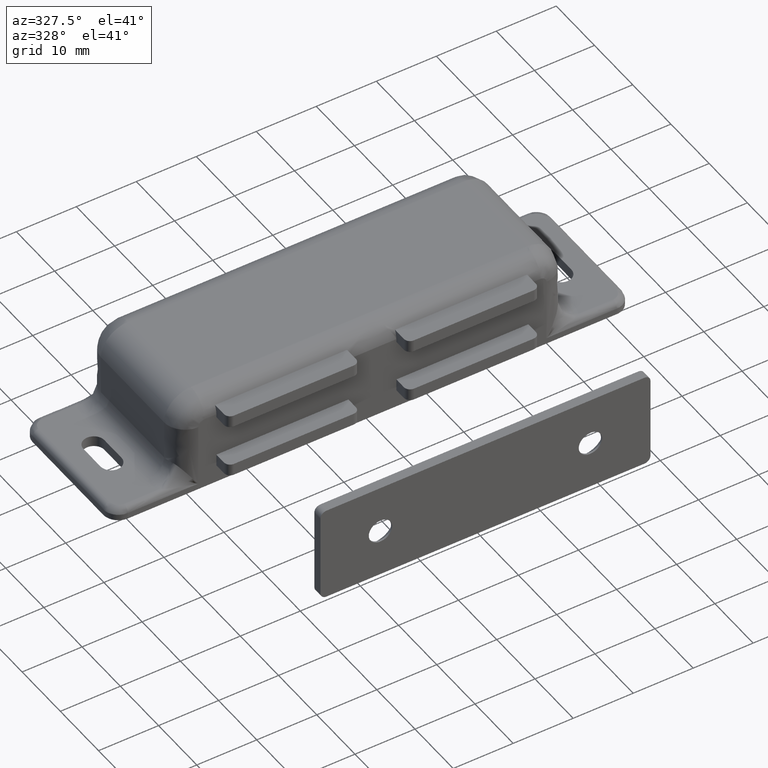
[diagram: clean part render]
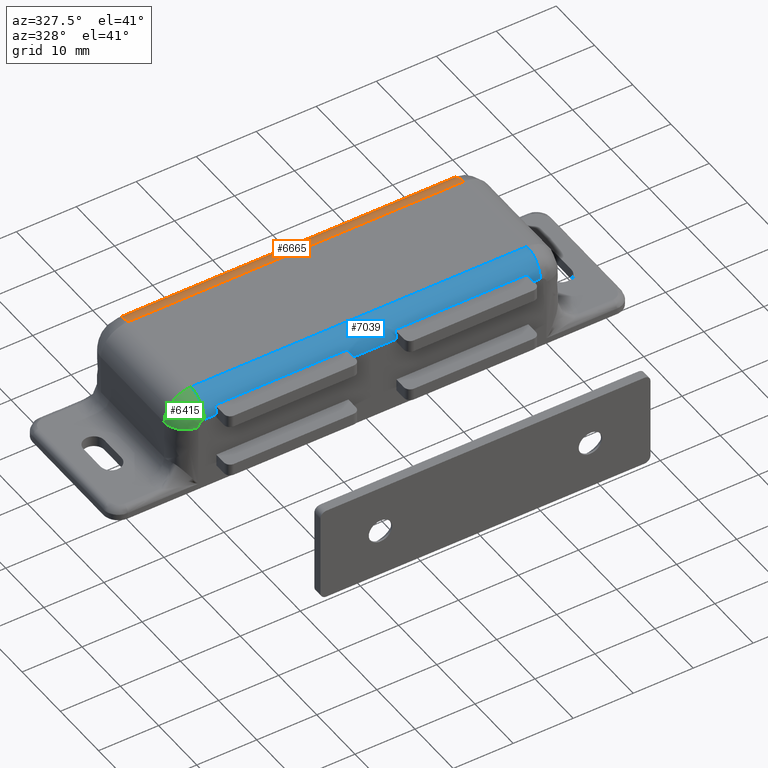
[diagram: same view with three faces highlighted in distinct colors, each labeled with its STEP entity id]
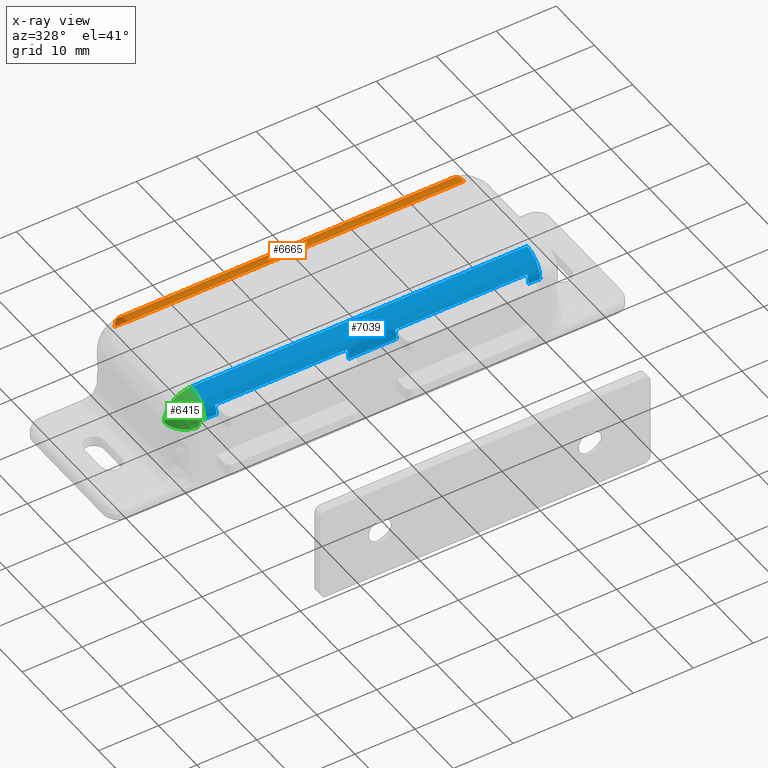
[diagram: x-ray of the same camera — body ghosted, the three highlighted faces saturated]
A machine part, auxiliary view with three faces highlighted in distinct colors.
The next image is the same camera in x-ray (body ghosted, the three faces saturated) — at least one of them is partly hidden behind the body in this view.
Their STEP definitions:

[orange] entity #6665 — the highlighted face is a freeform B-spline surface patch.
#6228=CARTESIAN_POINT('',(-28.000003000000000,11.750000000000000,12.500000000000000));
#6229=VERTEX_POINT('',#6228);
#6230=CARTESIAN_POINT('',(-28.000003000000000,8.250000000000110,16.0));
#6231=VERTEX_POINT('',#6230);
#6232=CARTESIAN_POINT('',(-28.000003000000000,11.750000000000000,12.500000000000000));
#6233=CARTESIAN_POINT('',(-28.000002999999996,11.750000000000110,16.0));
#6234=CARTESIAN_POINT('',(-28.000003000000000,8.250000000000110,16.0));
#6242=(BOUNDED_CURVE()B_SPLINE_CURVE(2,(#6232,#6233,#6234),.UNSPECIFIED.,.F.,.U.)CURVE()GEOMETRIC_REPRESENTATION_ITEM()QUASI_UNIFORM_CURVE()RATIONAL_B_SPLINE_CURVE((1.0,0.707106781186547,1.0))REPRESENTATION_ITEM(''));
#6243=EDGE_CURVE('',#6229,#6231,#6242,.T.);
#6528=CARTESIAN_POINT('',(28.0,8.250000000000110,16.0));
#6529=VERTEX_POINT('',#6528);
#6592=CARTESIAN_POINT('',(28.0,11.750000000000000,12.500000000000000));
#6593=VERTEX_POINT('',#6592);
#6607=CARTESIAN_POINT('',(28.0,8.250000000000110,16.0));
#6608=CARTESIAN_POINT('',(28.000000000000004,11.750000000000110,16.0));
#6609=CARTESIAN_POINT('',(28.0,11.750000000000000,12.500000000000000));
#6617=(BOUNDED_CURVE()B_SPLINE_CURVE(2,(#6607,#6608,#6609),.UNSPECIFIED.,.F.,.U.)CURVE()GEOMETRIC_REPRESENTATION_ITEM()QUASI_UNIFORM_CURVE()RATIONAL_B_SPLINE_CURVE((1.0,0.707106781186547,1.0))REPRESENTATION_ITEM(''));
#6618=EDGE_CURVE('',#6529,#6593,#6617,.T.);
#6637=CARTESIAN_POINT('',(29.400000075000008,11.749866730724710,12.469457125755691));
#6638=CARTESIAN_POINT('',(-29.435003076875009,11.749866730724710,12.469457125755691));
#6639=CARTESIAN_POINT('',(29.400000075000008,11.782619953378520,16.222604697041128));
#6640=CARTESIAN_POINT('',(-29.435003076875002,11.782619953378520,16.222604697041128));
#6641=CARTESIAN_POINT('',(29.400000075000008,8.036330111628113,15.993471794476530));
#6642=CARTESIAN_POINT('',(-29.435003076875009,8.036330111628113,15.993471794476530));
#6650=(BOUNDED_SURFACE()B_SPLINE_SURFACE(1,2,((#6637,#6639,#6641),(#6638,#6640,#6642)),.UNSPECIFIED.,.F.,.F.,.U.)B_SPLINE_SURFACE_WITH_KNOTS((2,2),(3,3),(0.0,58.835003151875007),(0.0,6.087373249453059),.UNSPECIFIED.)GEOMETRIC_REPRESENTATION_ITEM()RATIONAL_B_SPLINE_SURFACE(((1.0,0.681998360062499,1.0),(1.0,0.681998360062499,1.0)))REPRESENTATION_ITEM('')SURFACE());
#6651=CARTESIAN_POINT('',(-28.000003000000000,11.750000000000000,12.500000000000000));
#6652=CARTESIAN_POINT('',(28.0,11.750000000000000,12.500000000000000));
#6653=QUASI_UNIFORM_CURVE('',1,(#6651,#6652),.UNSPECIFIED.,.F.,.U.);
#6654=EDGE_CURVE('',#6229,#6593,#6653,.T.);
#6655=ORIENTED_EDGE('',*,*,#6654,.F.);
#6656=ORIENTED_EDGE('',*,*,#6243,.T.);
#6657=CARTESIAN_POINT('',(28.0,8.250000000000110,16.0));
#6658=CARTESIAN_POINT('',(-28.000003000000000,8.250000000000110,16.0));
#6659=QUASI_UNIFORM_CURVE('',1,(#6657,#6658),.UNSPECIFIED.,.F.,.U.);
#6660=EDGE_CURVE('',#6529,#6231,#6659,.T.);
#6661=ORIENTED_EDGE('',*,*,#6660,.F.);
#6662=ORIENTED_EDGE('',*,*,#6618,.T.);
#6663=EDGE_LOOP('',(#6655,#6656,#6661,#6662));
#6664=FACE_OUTER_BOUND('',#6663,.T.);
#6665=ADVANCED_FACE('',(#6664),#6650,.T.);

[blue] entity #7039 — the highlighted face is a freeform B-spline surface patch.
#1649=CARTESIAN_POINT('',(4.0,-11.412277660168240,14.0));
#1650=VERTEX_POINT('',#1649);
#1651=CARTESIAN_POINT('',(4.0,-11.750000000000000,12.500000000000000));
#1652=VERTEX_POINT('',#1651);
#1653=CARTESIAN_POINT('',(4.0,-11.412277660168250,14.0));
#1654=CARTESIAN_POINT('',(4.000000000000000,-11.749999999999874,13.288018792940452));
#1655=CARTESIAN_POINT('',(4.0,-11.750000000000000,12.500000000000000));
#1663=(BOUNDED_CURVE()B_SPLINE_CURVE(2,(#1653,#1654,#1655),.UNSPECIFIED.,.F.,.U.)CURVE()GEOMETRIC_REPRESENTATION_ITEM()QUASI_UNIFORM_CURVE()RATIONAL_B_SPLINE_CURVE((1.0,0.975578777676424,1.0))REPRESENTATION_ITEM(''));
#1664=EDGE_CURVE('',#1650,#1652,#1663,.T.);
#1715=CARTESIAN_POINT('',(26.0,-11.750000000000000,12.500000000000000));
#1716=VERTEX_POINT('',#1715);
#1717=CARTESIAN_POINT('',(26.0,-11.412277660168280,14.0));
#1718=VERTEX_POINT('',#1717);
#1719=CARTESIAN_POINT('',(26.0,-11.750000000000000,12.500000000000000));
#1720=CARTESIAN_POINT('',(26.000000000000004,-11.749999999999869,13.288018792940438));
#1721=CARTESIAN_POINT('',(26.0,-11.412277660168259,13.999999999999989));
#1729=(BOUNDED_CURVE()B_SPLINE_CURVE(2,(#1719,#1720,#1721),.UNSPECIFIED.,.F.,.U.)CURVE()GEOMETRIC_REPRESENTATION_ITEM()QUASI_UNIFORM_CURVE()RATIONAL_B_SPLINE_CURVE((1.0,0.975578777676425,1.0))REPRESENTATION_ITEM(''));
#1730=EDGE_CURVE('',#1716,#1718,#1729,.T.);
#1801=CARTESIAN_POINT('',(26.0,-11.412277660168280,14.0));
#1802=CARTESIAN_POINT('',(4.0,-11.412277660168240,14.0));
#1803=QUASI_UNIFORM_CURVE('',1,(#1801,#1802),.UNSPECIFIED.,.F.,.U.);
#1804=EDGE_CURVE('',#1718,#1650,#1803,.T.);
#1859=CARTESIAN_POINT('',(-4.0,-11.412277660168240,14.0));
#1860=VERTEX_POINT('',#1859);
#1887=CARTESIAN_POINT('',(-4.0,-11.750000000000000,12.500000000000000));
#1888=VERTEX_POINT('',#1887);
#1894=CARTESIAN_POINT('',(-4.0,-11.412277660168250,14.0));
#1895=CARTESIAN_POINT('',(-4.000000000000000,-11.749999999999874,13.288018792940452));
#1896=CARTESIAN_POINT('',(-4.0,-11.750000000000000,12.500000000000000));
#1904=(BOUNDED_CURVE()B_SPLINE_CURVE(2,(#1894,#1895,#1896),.UNSPECIFIED.,.F.,.U.)CURVE()GEOMETRIC_REPRESENTATION_ITEM()QUASI_UNIFORM_CURVE()RATIONAL_B_SPLINE_CURVE((1.0,0.975578777676424,1.0))REPRESENTATION_ITEM(''));
#1905=EDGE_CURVE('',#1860,#1888,#1904,.T.);
#1915=CARTESIAN_POINT('',(-26.000003000000000,-11.750000000000000,12.500000000000000));
#1916=VERTEX_POINT('',#1915);
#1945=CARTESIAN_POINT('',(-26.000003000000000,-11.412277660168280,14.0));
#1946=VERTEX_POINT('',#1945);
#1952=CARTESIAN_POINT('',(-26.000003000000000,-11.750000000000000,12.500000000000000));
#1953=CARTESIAN_POINT('',(-26.000003000000000,-11.749999999999869,13.288018792940438));
#1954=CARTESIAN_POINT('',(-26.000003000000000,-11.412277660168259,13.999999999999989));
#1962=(BOUNDED_CURVE()B_SPLINE_CURVE(2,(#1952,#1953,#1954),.UNSPECIFIED.,.F.,.U.)CURVE()GEOMETRIC_REPRESENTATION_ITEM()QUASI_UNIFORM_CURVE()RATIONAL_B_SPLINE_CURVE((1.0,0.975578777676425,1.0))REPRESENTATION_ITEM(''));
#1963=EDGE_CURVE('',#1916,#1946,#1962,.T.);
#1980=CARTESIAN_POINT('',(-26.000003000000000,-11.412277660168280,14.0));
#1981=CARTESIAN_POINT('',(-4.0,-11.412277660168240,14.0));
#1982=QUASI_UNIFORM_CURVE('',1,(#1980,#1981),.UNSPECIFIED.,.F.,.U.);
#1983=EDGE_CURVE('',#1946,#1860,#1982,.T.);
#6307=CARTESIAN_POINT('',(-28.000003000000000,-8.249999999999870,16.0));
#6308=VERTEX_POINT('',#6307);
#6371=CARTESIAN_POINT('',(-28.000003000000000,-11.750000000000000,12.500000000000000));
#6372=VERTEX_POINT('',#6371);
#6386=CARTESIAN_POINT('',(-28.000003000000000,-8.249999999999870,16.0));
#6387=CARTESIAN_POINT('',(-28.000002999999996,-11.749999999999872,16.0));
#6388=CARTESIAN_POINT('',(-28.000003000000000,-11.750000000000000,12.500000000000000));
#6396=(BOUNDED_CURVE()B_SPLINE_CURVE(2,(#6386,#6387,#6388),.UNSPECIFIED.,.F.,.U.)CURVE()GEOMETRIC_REPRESENTATION_ITEM()QUASI_UNIFORM_CURVE()RATIONAL_B_SPLINE_CURVE((1.0,0.707106781186547,1.0))REPRESENTATION_ITEM(''));
#6397=EDGE_CURVE('',#6308,#6372,#6396,.T.);
#6449=CARTESIAN_POINT('',(28.0,-11.750000000000000,12.500000000000000));
#6450=VERTEX_POINT('',#6449);
#6451=CARTESIAN_POINT('',(28.0,-8.249999999999870,16.0));
#6452=VERTEX_POINT('',#6451);
#6453=CARTESIAN_POINT('',(28.0,-11.750000000000000,12.500000000000000));
#6454=CARTESIAN_POINT('',(28.000000000000004,-11.749999999999890,16.0));
#6455=CARTESIAN_POINT('',(28.0,-8.249999999999890,16.0));
#6463=(BOUNDED_CURVE()B_SPLINE_CURVE(2,(#6453,#6454,#6455),.UNSPECIFIED.,.F.,.U.)CURVE()GEOMETRIC_REPRESENTATION_ITEM()QUASI_UNIFORM_CURVE()RATIONAL_B_SPLINE_CURVE((1.0,0.707106781186547,1.0))REPRESENTATION_ITEM(''));
#6464=EDGE_CURVE('',#6450,#6452,#6463,.T.);
#6805=CARTESIAN_POINT('',(-28.000003000000000,-8.249999999999870,16.0));
#6806=CARTESIAN_POINT('',(28.0,-8.249999999999870,16.0));
#6807=QUASI_UNIFORM_CURVE('',1,(#6805,#6806),.UNSPECIFIED.,.F.,.U.);
#6808=EDGE_CURVE('',#6308,#6452,#6807,.T.);
#6999=CARTESIAN_POINT('',(-29.400003075000001,-11.749866730724470,12.469457125755691));
#7000=CARTESIAN_POINT('',(29.435000076875010,-11.749866730724470,12.469457125755691));
#7001=CARTESIAN_POINT('',(-29.400003074999997,-11.782619953378280,16.222604697041128));
#7002=CARTESIAN_POINT('',(29.435000076875006,-11.782619953378280,16.222604697041128));
#7003=CARTESIAN_POINT('',(-29.400003075000001,-8.036330111627873,15.993471794476530));
#7004=CARTESIAN_POINT('',(29.435000076875010,-8.036330111627873,15.993471794476530));
#7012=(BOUNDED_SURFACE()B_SPLINE_SURFACE(1,2,((#6999,#7001,#7003),(#7000,#7002,#7004)),.UNSPECIFIED.,.F.,.F.,.U.)B_SPLINE_SURFACE_WITH_KNOTS((2,2),(3,3),(0.0,58.835003151875007),(0.0,6.087373249453067),.UNSPECIFIED.)GEOMETRIC_REPRESENTATION_ITEM()RATIONAL_B_SPLINE_SURFACE(((1.0,0.681998360062499,1.0),(1.0,0.681998360062499,1.0)))REPRESENTATION_ITEM('')SURFACE());
#7013=ORIENTED_EDGE('',*,*,#1730,.F.);
#7014=CARTESIAN_POINT('',(28.0,-11.750000000000000,12.500000000000000));
#7015=CARTESIAN_POINT('',(26.0,-11.750000000000000,12.500000000000000));
#7016=QUASI_UNIFORM_CURVE('',1,(#7014,#7015),.UNSPECIFIED.,.F.,.U.);
#7017=EDGE_CURVE('',#6450,#1716,#7016,.T.);
#7018=ORIENTED_EDGE('',*,*,#7017,.F.);
#7019=ORIENTED_EDGE('',*,*,#6464,.T.);
#7020=ORIENTED_EDGE('',*,*,#6808,.F.);
#7021=ORIENTED_EDGE('',*,*,#6397,.T.);
#7022=CARTESIAN_POINT('',(-26.000003000000000,-11.750000000000000,12.500000000000000));
#7023=CARTESIAN_POINT('',(-28.000003000000000,-11.750000000000000,12.500000000000000));
#7024=QUASI_UNIFORM_CURVE('',1,(#7022,#7023),.UNSPECIFIED.,.F.,.U.);
#7025=EDGE_CURVE('',#1916,#6372,#7024,.T.);
#7026=ORIENTED_EDGE('',*,*,#7025,.F.);
#7027=ORIENTED_EDGE('',*,*,#1963,.T.);
#7028=ORIENTED_EDGE('',*,*,#1983,.T.);
#7029=ORIENTED_EDGE('',*,*,#1905,.T.);
#7030=CARTESIAN_POINT('',(4.0,-11.750000000000000,12.500000000000000));
#7031=CARTESIAN_POINT('',(-4.0,-11.750000000000000,12.500000000000000));
#7032=QUASI_UNIFORM_CURVE('',1,(#7030,#7031),.UNSPECIFIED.,.F.,.U.);
#7033=EDGE_CURVE('',#1652,#1888,#7032,.T.);
#7034=ORIENTED_EDGE('',*,*,#7033,.F.);
#7035=ORIENTED_EDGE('',*,*,#1664,.F.);
#7036=ORIENTED_EDGE('',*,*,#1804,.F.);
#7037=EDGE_LOOP('',(#7013,#7018,#7019,#7020,#7021,#7026,#7027,#7028,#7029,#7034,#7035,#7036));
#7038=FACE_OUTER_BOUND('',#7037,.T.);
#7039=ADVANCED_FACE('',(#7038),#7012,.T.);

[green] entity #6415 — the highlighted face is a freeform B-spline surface patch.
#6305=CARTESIAN_POINT('',(-32.500003000000000,-8.249999999999870,11.500000000000000));
#6306=VERTEX_POINT('',#6305);
#6307=CARTESIAN_POINT('',(-28.000003000000000,-8.249999999999870,16.0));
#6308=VERTEX_POINT('',#6307);
#6309=CARTESIAN_POINT('',(-32.500003000000000,-8.249999999999870,11.500000000000000));
#6310=CARTESIAN_POINT('',(-32.500002999999992,-8.249999999999870,16.0));
#6311=CARTESIAN_POINT('',(-28.000003000000000,-8.249999999999870,16.0));
#6319=(BOUNDED_CURVE()B_SPLINE_CURVE(2,(#6309,#6310,#6311),.UNSPECIFIED.,.F.,.U.)CURVE()GEOMETRIC_REPRESENTATION_ITEM()QUASI_UNIFORM_CURVE()RATIONAL_B_SPLINE_CURVE((1.0,0.707106781186547,1.0))REPRESENTATION_ITEM(''));
#6320=EDGE_CURVE('',#6306,#6308,#6319,.T.);
#6336=CARTESIAN_POINT('',(-32.485874669905627,-8.115470002548841,11.177999718988769));
#6337=CARTESIAN_POINT('',(-32.531733553073295,-9.310743558442718,11.174707923245723));
#6338=CARTESIAN_POINT('',(-31.838330252422470,-10.284143394378594,11.224481094235335));
#6339=CARTESIAN_POINT('',(-30.697137022675758,-11.886150915202281,11.306397066805788));
#6340=CARTESIAN_POINT('',(-28.738959821526333,-11.740393313694124,11.446956952473046));
#6341=CARTESIAN_POINT('',(-32.497416570023681,-8.115470002548841,11.338793003373150));
#6342=CARTESIAN_POINT('',(-32.543393445565634,-9.310743558442718,11.337144990819935));
#6343=CARTESIAN_POINT('',(-31.848206056508683,-10.284143394378589,11.362063551085260));
#6344=CARTESIAN_POINT('',(-30.704076599593119,-11.886150915202279,11.403074160990252));
#6345=CARTESIAN_POINT('',(-28.740861116626427,-11.740393313694129,11.473444400865423));
#6346=CARTESIAN_POINT('',(-32.497416570023681,-8.115470002548841,11.499999999999996));
#6347=CARTESIAN_POINT('',(-32.543393445565627,-9.310743558442720,11.500000000000007));
#6348=CARTESIAN_POINT('',(-31.848206056508680,-10.284143394378590,11.500000000000000));
#6349=CARTESIAN_POINT('',(-30.704076599593122,-11.886150915202281,11.500000000000002));
#6350=CARTESIAN_POINT('',(-28.740861116626427,-11.740393313694138,11.500000000000004));
#6351=CARTESIAN_POINT('',(-32.497416570023695,-8.115470002548838,15.997413570023681));
#6352=CARTESIAN_POINT('',(-32.543393445565634,-9.310743558442720,16.043390445565628));
#6353=CARTESIAN_POINT('',(-31.848206056508690,-10.284143394378592,15.348203056508687));
#6354=CARTESIAN_POINT('',(-30.704076599593122,-11.886150915202277,14.204073599593114));
#6355=CARTESIAN_POINT('',(-28.740861116626430,-11.740393313694128,12.240858116626420));
#6356=CARTESIAN_POINT('',(-28.000003000000000,-8.115470002548841,15.997413570023687));
#6357=CARTESIAN_POINT('',(-28.000003000000000,-9.310743558442720,16.043390445565628));
#6358=CARTESIAN_POINT('',(-28.000003000000000,-10.284143394378590,15.348203056508680));
#6359=CARTESIAN_POINT('',(-28.000002999999992,-11.886150915202281,14.204073599593121));
#6360=CARTESIAN_POINT('',(-28.000003000000003,-11.740393313694138,12.240858116626429));
#6368=(BOUNDED_SURFACE()B_SPLINE_SURFACE(2,2,((#6336,#6341,#6346,#6351,#6356),(#6337,#6342,#6347,#6352,#6357),(#6338,#6343,#6348,#6353,#6358),(#6339,#6344,#6349,#6354,#6359),(#6340,#6345,#6350,#6355,#6360)),.UNSPECIFIED.,.F.,.F.,.U.)B_SPLINE_SURFACE_WITH_KNOTS((3,2,3),(3,2,3),(0.0,2.376698759933532,6.053855498330363),(0.0,0.372205272580987,7.823764057799425),.UNSPECIFIED.)GEOMETRIC_REPRESENTATION_ITEM()RATIONAL_B_SPLINE_SURFACE(((0.882001978367700,0.893948700043280,0.907221360147103,0.641502375797300,0.907221360147103),(0.876244567146420,0.888113304655161,0.901299325313618,0.637314864808119,0.901299325313618),(0.972201512346101,0.985369987208336,1.0,0.707106781186548,1.0),(0.823739816827376,0.834897377202628,0.847293288856896,0.599126830204563,0.847293288856896),(0.918755299835598,0.931199845453753,0.945025581803995,0.668233997288368,0.945025581803995)))REPRESENTATION_ITEM('')SURFACE());
#6369=CARTESIAN_POINT('',(-29.000003000000000,-11.750000000000000,11.500000000000000));
#6370=VERTEX_POINT('',#6369);
#6371=CARTESIAN_POINT('',(-28.000003000000000,-11.750000000000000,12.500000000000000));
#6372=VERTEX_POINT('',#6371);
#6373=CARTESIAN_POINT('',(-29.000003000000000,-11.750000000000000,11.500000000000000));
#6374=CARTESIAN_POINT('',(-29.000002999999996,-11.750000000000002,12.500000000000000));
#6375=CARTESIAN_POINT('',(-28.000003000000000,-11.750000000000000,12.500000000000000));
#6383=(BOUNDED_CURVE()B_SPLINE_CURVE(2,(#6373,#6374,#6375),.UNSPECIFIED.,.F.,.U.)CURVE()GEOMETRIC_REPRESENTATION_ITEM()QUASI_UNIFORM_CURVE()RATIONAL_B_SPLINE_CURVE((1.0,0.707106781186548,1.0))REPRESENTATION_ITEM(''));
#6384=EDGE_CURVE('',#6370,#6372,#6383,.T.);
#6385=ORIENTED_EDGE('',*,*,#6384,.T.);
#6386=CARTESIAN_POINT('',(-28.000003000000000,-8.249999999999870,16.0));
#6387=CARTESIAN_POINT('',(-28.000002999999996,-11.749999999999872,16.0));
#6388=CARTESIAN_POINT('',(-28.000003000000000,-11.750000000000000,12.500000000000000));
#6396=(BOUNDED_CURVE()B_SPLINE_CURVE(2,(#6386,#6387,#6388),.UNSPECIFIED.,.F.,.U.)CURVE()GEOMETRIC_REPRESENTATION_ITEM()QUASI_UNIFORM_CURVE()RATIONAL_B_SPLINE_CURVE((1.0,0.707106781186547,1.0))REPRESENTATION_ITEM(''));
#6397=EDGE_CURVE('',#6308,#6372,#6396,.T.);
#6398=ORIENTED_EDGE('',*,*,#6397,.F.);
#6399=ORIENTED_EDGE('',*,*,#6320,.F.);
#6400=CARTESIAN_POINT('',(-29.000003000000000,-11.749999999999890,11.500000000000000));
#6401=CARTESIAN_POINT('',(-32.500002999999992,-11.749999999999890,11.500000000000002));
#6402=CARTESIAN_POINT('',(-32.500003000000000,-8.249999999999890,11.500000000000000));
#6410=(BOUNDED_CURVE()B_SPLINE_CURVE(2,(#6400,#6401,#6402),.UNSPECIFIED.,.F.,.U.)CURVE()GEOMETRIC_REPRESENTATION_ITEM()QUASI_UNIFORM_CURVE()RATIONAL_B_SPLINE_CURVE((1.0,0.707106781186547,1.0))REPRESENTATION_ITEM(''));
#6411=EDGE_CURVE('',#6370,#6306,#6410,.T.);
#6412=ORIENTED_EDGE('',*,*,#6411,.F.);
#6413=EDGE_LOOP('',(#6385,#6398,#6399,#6412));
#6414=FACE_OUTER_BOUND('',#6413,.T.);
#6415=ADVANCED_FACE('',(#6414),#6368,.T.);